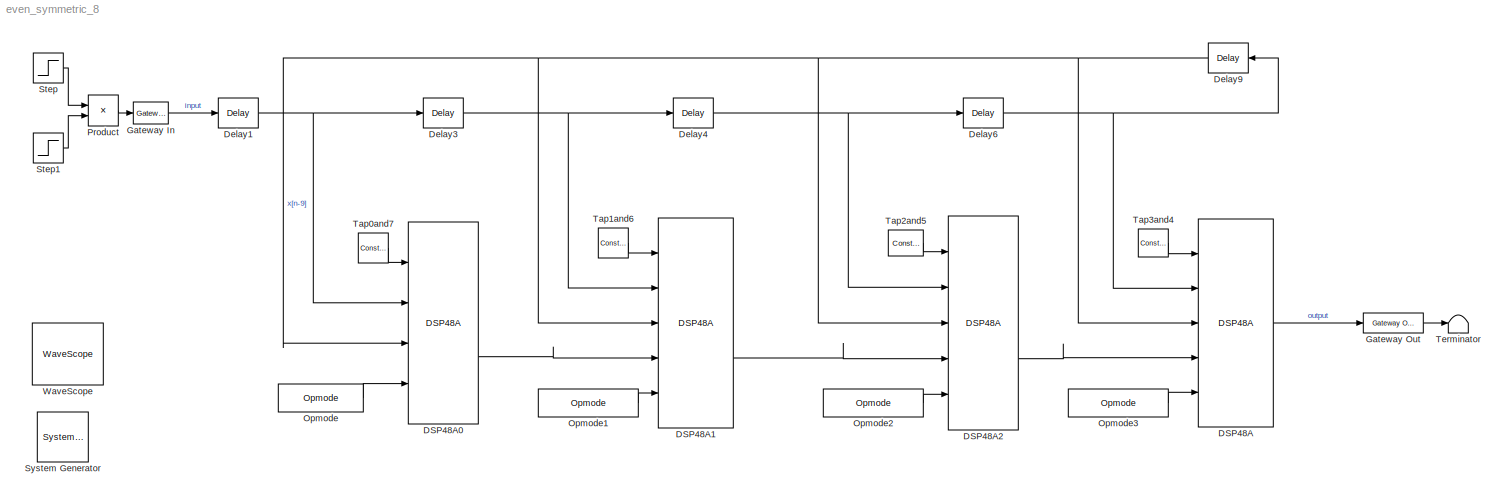
MODEL even_symmetric_8
KIND model
BLOCK [Reference]  System Generator  REF=xbsIndex_r4/ System Generator
  AttributesFormatString = System\\nGenerator
  FunctionWithSeparateData = off
  Ports = []
  RTWMemSecDataConstants = Inherit from model
  RTWMemSecDataInternal = Inherit from model
  RTWMemSecDataParameters = Inherit from model
  RTWMemSecFuncExecute = Inherit from model
  RTWMemSecFuncInitTerm = Inherit from model
  ShowPortLabels = FromPortIcon
  SourceBlock = xbsIndex_r4/ System Generator
  SourceType = Xilinx System Generator Block
  SystemSampleTime = -1
  Tag = genX
  UserData = DataTag0
  UserDataPersistent = on
  block_type = sysgen
  block_version = 9.2.01
  core_generation = According to Block Masks
  dbl_ovrd = According to Block Masks
  deprecated_control = off
  directory = ./even_symmetric_8
  eval_field = 0
  has_advanced_control = 0
  incr_netlist = off
  infoedit = System Generator
  package = cs484
  part = xc3sd1800a
  run_coregen = off
  sg_icon_stat = 51,50,-1,-1,red,beige,0,07734
  sg_mask_display = fprintf('','COMMENT: begin icon graphics');\npatch([0 51 51 0 ],[0 0 50 50 ],[0.93 0.92 0.86]);\npatch([12 4 16 4 12 25 29 33 47 36 25 17 29 17 25 36 47 33 29 25 12 ],[5 13 25 37 45 45 41 45 45 34 45 37 25 13 5 16 5 5 9 5 5 ],[0.6 0.2 0.25]);\nplot([0 0 51 51 0 ],[0 50 50 0 0 ]);\nfprintf('','COMMENT: end icon graphics');\nfprintf('','COMMENT: begin icon text');\nfprintf('','COMMENT: end icon text...<+5ch>
  sggui_pos = -1,-1,-1,-1
  simulink_period = 1
  speed = -5
  synthesis_tool = XST
  sysclk_period = 10
  testbench = off
  trim_vbits = Everywhere in SubSystem
  xilinxfamily = spartan3adsp
BLOCK [Reference] DSP48A  REF=xbsIndex_r4/DSP48A
  Ports = [5, 1]
  SourceBlock = xbsIndex_r4/DSP48A
  SourceType = Xilinx DSP48A Block
  block_type = dsp48a
  block_version = 9.2.01
  carryin_type = Direct from carry in port
  dbl_ovrd = off
  device = 3
  en_a = off
  en_all = off
  en_b = off
  en_c = off
  en_carry_in = off
  en_d = off
  en_mult = off
  en_opmode = off
  en_p = off
  has_advanced_control = 0
  pipeline_c = on
  pipeline_carryin = on
  pipeline_d = on
  pipeline_mult = on
  pipeline_opmode = on
  pipeline_p = on
  rst_a = off
  rst_all = off
  rst_b = off
  rst_c = off
  rst_carry_in = off
  rst_d = off
  rst_mult = off
  rst_opmode = off
  rst_p = off
  sg_icon_stat = 75,208,5,1,white,blue,0,9702439f
  sg_mask_display = fprintf('','COMMENT: begin icon graphics');\npatch([0 75 75 0 ],[0 0 208 208 ],[0.77 0.82 0.91]);\npatch([17 5 23 5 17 37 42 47 68 51 35 23 40 23 35 51 68 47 42 37 17 ],[75 87 105 123 135 135 130 135 135 118 134 122 105 88 76 92 75 75 80 75 75 ],[0.98 0.96 0.92]);\nplot([0 0 75 75 0 ],[0 208 208 0 0 ]);\nfprintf('','COMMENT: end icon graphics');\nfprintf('','COMMENT: begin icon text');\ncolor('bla...<+292ch>
  sggui_pos = 20,20,442,483
  use_a0reg = on
  use_a1reg = off
  use_b0reg = on
  use_b1reg = on
  use_bcout = off
  use_carryin = off
  use_carryout = off
  use_creg = off
  use_d = on
  use_op = on
  use_pcin = on
  use_pcout = off
  use_synth_model = off
  xl_area = [0,0,0,0,0,0,0]
  xl_use_area = off
BLOCK [Reference] DSP48A0  REF=xbsIndex_r4/DSP48A
  Ports = [4, 2]
  SourceBlock = xbsIndex_r4/DSP48A
  SourceType = Xilinx DSP48A Block
  block_type = dsp48a
  block_version = 9.2.01
  carryin_type = Direct from carry in port
  dbl_ovrd = off
  device = 3
  en_a = off
  en_all = off
  en_b = off
  en_c = off
  en_carry_in = off
  en_d = off
  en_mult = off
  en_opmode = off
  en_p = off
  has_advanced_control = 0
  pipeline_c = off
  pipeline_carryin = on
  pipeline_d = on
  pipeline_mult = on
  pipeline_opmode = on
  pipeline_p = on
  rst_a = off
  rst_all = off
  rst_b = off
  rst_c = off
  rst_carry_in = off
  rst_d = off
  rst_mult = off
  rst_opmode = off
  rst_p = off
  sg_icon_stat = 70,202,4,2,white,blue,0,78921e76
  sg_mask_display = fprintf('','COMMENT: begin icon graphics');\npatch([0 70 70 0 ],[0 0 202 202 ],[0.77 0.82 0.91]);\npatch([17 5 21 5 17 35 40 45 65 49 34 23 39 23 34 49 65 45 40 35 17 ],[74 86 102 118 130 130 125 130 130 114 129 118 102 86 75 90 74 74 79 74 74 ],[0.98 0.96 0.92]);\nplot([0 0 70 70 0 ],[0 202 202 0 0 ]);\nfprintf('','COMMENT: end icon graphics');\nfprintf('','COMMENT: begin icon text');\ncolor('bla...<+294ch>
  sggui_pos = 20,20,442,483
  use_a0reg = on
  use_a1reg = off
  use_b0reg = on
  use_b1reg = on
  use_bcout = off
  use_carryin = off
  use_carryout = off
  use_creg = off
  use_d = on
  use_op = on
  use_pcin = off
  use_pcout = on
  use_synth_model = off
  xl_area = [0,0,0,0,0,0,0]
  xl_use_area = off
BLOCK [Reference] DSP48A1  REF=xbsIndex_r4/DSP48A
  Ports = [5, 2]
  SourceBlock = xbsIndex_r4/DSP48A
  SourceType = Xilinx DSP48A Block
  block_type = dsp48a
  block_version = 9.2.01
  carryin_type = Direct from carry in port
  dbl_ovrd = off
  device = 3
  en_a = off
  en_all = off
  en_b = off
  en_c = off
  en_carry_in = off
  en_d = off
  en_mult = off
  en_opmode = off
  en_p = off
  has_advanced_control = 0
  pipeline_c = on
  pipeline_carryin = on
  pipeline_d = on
  pipeline_mult = on
  pipeline_opmode = on
  pipeline_p = on
  rst_a = off
  rst_all = off
  rst_b = off
  rst_c = off
  rst_carry_in = off
  rst_d = off
  rst_mult = off
  rst_opmode = off
  rst_p = off
  sg_icon_stat = 75,210,5,2,white,blue,0,05785a86
  sg_mask_display = fprintf('','COMMENT: begin icon graphics');\npatch([0 75 75 0 ],[0 0 210 210 ],[0.77 0.82 0.91]);\npatch([17 5 23 5 17 37 42 47 68 51 35 23 40 23 35 51 68 47 42 37 17 ],[76 88 106 124 136 136 131 136 136 119 135 123 106 89 77 93 76 76 81 76 76 ],[0.98 0.96 0.92]);\nplot([0 0 75 75 0 ],[0 210 210 0 0 ]);\nfprintf('','COMMENT: end icon graphics');\nfprintf('','COMMENT: begin icon text');\ncolor('bla...<+340ch>
  sggui_pos = 20,20,442,483
  use_a0reg = on
  use_a1reg = off
  use_b0reg = on
  use_b1reg = on
  use_bcout = off
  use_carryin = off
  use_carryout = off
  use_creg = off
  use_d = on
  use_op = on
  use_pcin = on
  use_pcout = on
  use_synth_model = off
  xl_area = [0,0,0,0,0,0,0]
  xl_use_area = off
BLOCK [Reference] DSP48A2  REF=xbsIndex_r4/DSP48A
  Ports = [5, 2]
  SourceBlock = xbsIndex_r4/DSP48A
  SourceType = Xilinx DSP48A Block
  block_type = dsp48a
  block_version = 9.2.01
  carryin_type = Direct from carry in port
  dbl_ovrd = off
  device = 3
  en_a = off
  en_all = off
  en_b = off
  en_c = off
  en_carry_in = off
  en_d = off
  en_mult = off
  en_opmode = off
  en_p = off
  has_advanced_control = 0
  pipeline_c = on
  pipeline_carryin = on
  pipeline_d = on
  pipeline_mult = on
  pipeline_opmode = on
  pipeline_p = on
  rst_a = off
  rst_all = off
  rst_b = off
  rst_c = off
  rst_carry_in = off
  rst_d = off
  rst_mult = off
  rst_opmode = off
  rst_p = off
  sg_icon_stat = 70,214,5,2,white,blue,0,05785a86
  sg_mask_display = fprintf('','COMMENT: begin icon graphics');\npatch([0 70 70 0 ],[0 0 214 214 ],[0.77 0.82 0.91]);\npatch([17 5 21 5 17 35 40 45 65 49 34 23 39 23 34 49 65 45 40 35 17 ],[80 92 108 124 136 136 131 136 136 120 135 124 108 92 81 96 80 80 85 80 80 ],[0.98 0.96 0.92]);\nplot([0 0 70 70 0 ],[0 214 214 0 0 ]);\nfprintf('','COMMENT: end icon graphics');\nfprintf('','COMMENT: begin icon text');\ncolor('bla...<+340ch>
  sggui_pos = 20,20,442,483
  use_a0reg = on
  use_a1reg = off
  use_b0reg = on
  use_b1reg = on
  use_bcout = off
  use_carryin = off
  use_carryout = off
  use_creg = off
  use_d = on
  use_op = on
  use_pcin = on
  use_pcout = on
  use_synth_model = off
  xl_area = [0,0,0,0,0,0,0]
  xl_use_area = off
BLOCK [Reference] Delay1  REF=xbsIndex_r4/Delay
  Ports = [1, 1]
  SourceBlock = xbsIndex_r4/Delay
  SourceType = Xilinx Delay Block
  block_type = delay
  block_version = 9.2.01
  dbl_ovrd = off
  en = off
  has_advanced_control = 0
  infoedit = Hardware notes: A delay line is a chain, each link of which is an SRL16 followed by a flip-flop.
  latency = 2
  reg_retiming = off
  sg_icon_stat = 40,30,1,1,white,blue,0,0a7a6cf1
  sg_mask_display = fprintf('','COMMENT: begin icon graphics');\npatch([0 40 40 0 ],[0 0 30 30 ],[0.77 0.82 0.91]);\npatch([12 7 14 7 12 20 22 24 32 25 19 14 20 14 19 25 32 24 22 20 12 ],[3 8 15 22 27 27 25 27 27 20 26 21 15 9 4 10 3 3 5 3 3 ],[0.98 0.96 0.92]);\nplot([0 0 40 40 0 ],[0 30 30 0 0 ]);\nfprintf('','COMMENT: end icon graphics');\nfprintf('','COMMENT: begin icon text');\ncolor('black');disp('z^{-2}','texm...<+52ch>  <repeated x4 — deduplicated; at blocks: Delay1, Delay3, Delay4, Delay6>
  sggui_pos = 20,20,348,255
  xl_area = [0,0,0,0,0,0,0]
  xl_use_area = off
BLOCK [Reference] Delay3  REF=xbsIndex_r4/Delay
  Ports = [1, 1]
  SourceBlock = xbsIndex_r4/Delay
  SourceType = Xilinx Delay Block
  block_type = delay
  block_version = 9.2.01
  dbl_ovrd = off
  en = off
  has_advanced_control = 0
  infoedit = Hardware notes: A delay line is a chain, each link of which is an SRL16 followed by a flip-flop.
  latency = 2
  reg_retiming = off
  sg_icon_stat = 40,30,1,1,white,blue,0,0a7a6cf1
  sggui_pos = 20,20,348,255
  xl_area = [0,0,0,0,0,0,0]
  xl_use_area = off
BLOCK [Reference] Delay4  REF=xbsIndex_r4/Delay
  Ports = [1, 1]
  SourceBlock = xbsIndex_r4/Delay
  SourceType = Xilinx Delay Block
  block_type = delay
  block_version = 9.2.01
  dbl_ovrd = off
  en = off
  has_advanced_control = 0
  infoedit = Hardware notes: A delay line is a chain, each link of which is an SRL16 followed by a flip-flop.
  latency = 2
  reg_retiming = off
  sg_icon_stat = 40,30,1,1,white,blue,0,0a7a6cf1
  sggui_pos = 20,20,348,255
  xl_area = [0,0,0,0,0,0,0]
  xl_use_area = off
BLOCK [Reference] Delay6  REF=xbsIndex_r4/Delay
  Ports = [1, 1]
  SourceBlock = xbsIndex_r4/Delay
  SourceType = Xilinx Delay Block
  block_type = delay
  block_version = 9.2.01
  dbl_ovrd = off
  en = off
  has_advanced_control = 0
  infoedit = Hardware notes: A delay line is a chain, each link of which is an SRL16 followed by a flip-flop.
  latency = 2
  reg_retiming = off
  sg_icon_stat = 40,30,1,1,white,blue,0,0a7a6cf1
  sggui_pos = 20,20,348,255
  xl_area = [0,0,0,0,0,0,0]
  xl_use_area = off
BLOCK [Reference] Delay9  REF=xbsIndex_r4/Delay
  Ports = [1, 1]
  SourceBlock = xbsIndex_r4/Delay
  SourceType = Xilinx Delay Block
  block_type = delay
  block_version = 9.2.01
  dbl_ovrd = off
  en = off
  has_advanced_control = 0
  infoedit = Hardware notes: A delay line is a chain, each link of which is an SRL16 followed by a flip-flop.
  latency = 1
  reg_retiming = off
  sg_icon_stat = 40,30,1,1,white,blue,0,fc531c0e
  sg_mask_display = fprintf('','COMMENT: begin icon graphics');\npatch([0 40 40 0 ],[0 0 30 30 ],[0.77 0.82 0.91]);\npatch([12 7 14 7 12 20 22 24 32 25 19 14 20 14 19 25 32 24 22 20 12 ],[3 8 15 22 27 27 25 27 27 20 26 21 15 9 4 10 3 3 5 3 3 ],[0.98 0.96 0.92]);\nplot([0 0 40 40 0 ],[0 30 30 0 0 ]);\nfprintf('','COMMENT: end icon graphics');\nfprintf('','COMMENT: begin icon text');\ncolor('black');disp('z^{-1}','texm...<+52ch>
  sggui_pos = 20,20,348,255
  xl_area = [0,0,0,0,0,0,0]
  xl_use_area = off
BLOCK [Reference] Gateway In  REF=xbsIndex_r4/Gateway In
  LOCs = {}
  Ports = [1, 1]
  SourceBlock = xbsIndex_r4/Gateway In
  SourceType = Xilinx Gateway In Block
  arith_type = Signed  (2's comp)
  bin_pt = 0
  block_type = gatewayin
  block_version = 9.2.01
  dbl_ovrd = off
  has_advanced_control = 0
  infoedit = Gateway in block.  Converts inputs of type Simulink integer, double and fixed point to  Xilinx fixed point type.<P><P>Hardware notes:  In hardware these blocks become top level input ports.
  locs_specified = off
  n_bits = 18
  overflow = Saturate
  period = 1
  quantization = Round  (unbiased: +/- Inf)
  sg_icon_stat = 35,22,1,1,white,yellow,0,4bb76ffd
  sg_mask_display = fprintf('','COMMENT: begin icon graphics');\npatch([0 35 35 0 ],[0 0 22 22 ],[0.95 0.93 0.65]);\npatch([12 8 13 8 12 18 20 22 28 23 18 15 21 15 18 23 28 22 20 18 12 ],[2 6 11 16 20 20 18 20 20 15 20 17 11 5 2 7 2 2 4 2 2 ],[0.98 0.96 0.92]);\nplot([0 0 35 35 0 ],[0 22 22 0 0 ]);\nfprintf('','COMMENT: end icon graphics');\nfprintf('','COMMENT: begin icon text');\ncolor('black');port_label('input',1...<+129ch>
  sggui_pos = 20,20,348,406
  timing_constraint = None
  xl_area = [0,0,0,0,0,0,0]
  xl_use_area = off
BLOCK [Reference] Gateway Out  REF=xbsIndex_r4/Gateway Out
  LOCs = {}
  Ports = [1, 1]
  SourceBlock = xbsIndex_r4/Gateway Out
  SourceType = Xilinx Gateway Out Block
  block_type = gatewayout
  block_version = 9.2.01
  has_advanced_control = 0
  hdl_port = on
  infoedit = Gateway out block.  Converts Xilinx fixed point inputs into ouputs of type Simulink integer, double, or fixed point.<P><P>Hardware notes:  In hardware these blocks become top level output ports or are discarded, depending on how they are configured.
  locs_specified = off
  sg_icon_stat = 60,20,1,1,white,yellow,0,f0cec300
  sg_mask_display = fprintf('','COMMENT: begin icon graphics');\npatch([0 60 60 0 ],[0 0 20 20 ],[0.95 0.93 0.65]);\npatch([24 21 26 21 24 29 30 31 37 33 29 26 31 26 29 33 37 31 30 29 24 ],[2 5 10 15 18 18 17 18 18 14 18 15 10 5 2 6 2 2 3 2 2 ],[0.98 0.96 0.92]);\nplot([0 0 60 60 0 ],[0 20 20 0 0 ]);\nfprintf('','COMMENT: end icon graphics');\nfprintf('','COMMENT: begin icon text');\ncolor('black');port_label('input'...<+132ch>
  sggui_pos = -1,-1,-1,-1
  timing_constraint = None
  xl_area = [0,0,0,0,0,0,0]
  xl_use_area = off
BLOCK [Reference] Opmode  REF=xbsIndex_r4/Opmode
  Ports = [0, 1]
  SourceBlock = xbsIndex_r4/Opmode
  SourceType = Xilinx Instruction Block Block
  block_type = opmode
  block_version = 9.2.01
  carry = 0
  dbl_ovrd = off
  device = DSP48A
  equ = P=+(A*(D+B))
  has_advanced_control = 0
  logicinstr = X + Z
  operand = +
  operation = Custom
  sg_icon_stat = 85,28,0,1,white,blue,0,1dcbd6aa
  sg_list_contents = {'table'=>{'carry'=>'popup(0|1|CIN)','operation'=>'popup(C + A*B|PCIN + A*B|P + A*B|A * B|C + D:A:B|C - D:A:B|C|Custom)','userSelections'=>{'carry'=>'0','operation'=>'Custom','z_mux'=>'0'},'z_mux'=>'popup(0|PCIN|P|C)'}}
  sg_mask_display = fprintf('','COMMENT: begin icon graphics');\npatch([0 85 85 0 ],[0 0 28 28 ],[0.77 0.82 0.91]);\npatch([35 30 37 30 35 42 44 46 54 48 42 38 46 38 42 48 54 46 44 42 35 ],[3 8 15 22 27 27 25 27 27 21 27 23 15 7 3 9 3 3 5 3 3 ],[0.98 0.96 0.92]);\nplot([0 0 85 85 0 ],[0 28 28 0 0 ]);\nfprintf('','COMMENT: end icon graphics');\nfprintf('','COMMENT: begin icon text');\ncolor('black');port_label('output...<+61ch>
  sggui_pos = 20,20,336,450
  x_mux = A*(D+B)
  xy_mux = P
  z_mux = 0
BLOCK [Reference] Opmode1  REF=xbsIndex_r4/Opmode
  Ports = [0, 1]
  SourceBlock = xbsIndex_r4/Opmode
  SourceType = Xilinx Instruction Block Block
  block_type = opmode
  block_version = 9.2.01
  carry = 0
  dbl_ovrd = off
  device = DSP48A
  equ = P=PCIN+(A*(D+B))
  has_advanced_control = 0
  logicinstr = X + Z
  operand = +
  operation = Custom
  sg_icon_stat = 100,28,0,1,white,blue,0,9760c779
  sg_list_contents = {'table'=>{'carry'=>'popup(0|1|CIN)','operation'=>'popup(C + A*B|PCIN + A*B|P + A*B|A * B|C + D:A:B|C - D:A:B|C|Custom)','userSelections'=>{'carry'=>'0','operation'=>'Custom','z_mux'=>'PCIN'},'z_mux'=>'popup(0|PCIN|P|C)'}}  <repeated x3 — deduplicated; at blocks: Opmode1, Opmode2, Opmode3>
  sg_mask_display = fprintf('','COMMENT: begin icon graphics');\npatch([0 100 100 0 ],[0 0 28 28 ],[0.77 0.82 0.91]);\npatch([43 38 45 38 43 50 52 54 62 56 50 46 54 46 50 56 62 54 52 50 43 ],[3 8 15 22 27 27 25 27 27 21 27 23 15 7 3 9 3 3 5 3 3 ],[0.98 0.96 0.92]);\nplot([0 0 100 100 0 ],[0 28 28 0 0 ]);\nfprintf('','COMMENT: end icon graphics');\nfprintf('','COMMENT: begin icon text');\ncolor('black');port_label('ou...<+69ch>  <repeated x3 — deduplicated; at blocks: Opmode1, Opmode2, Opmode3>
  sggui_pos = 20,20,336,450
  x_mux = A*(D+B)
  xy_mux = P
  z_mux = PCIN
BLOCK [Reference] Opmode2  REF=xbsIndex_r4/Opmode
  Ports = [0, 1]
  SourceBlock = xbsIndex_r4/Opmode
  SourceType = Xilinx Instruction Block Block
  block_type = opmode
  block_version = 9.2.01
  carry = 0
  dbl_ovrd = off
  device = DSP48A
  equ = P=PCIN+(A*(D+B))
  has_advanced_control = 0
  logicinstr = X + Z
  operand = +
  operation = Custom
  sg_icon_stat = 100,28,0,1,white,blue,0,9760c779
  sggui_pos = 20,20,336,450
  x_mux = A*(D+B)
  xy_mux = P
  z_mux = PCIN
BLOCK [Reference] Opmode3  REF=xbsIndex_r4/Opmode
  Ports = [0, 1]
  SourceBlock = xbsIndex_r4/Opmode
  SourceType = Xilinx Instruction Block Block
  block_type = opmode
  block_version = 9.2.01
  carry = 0
  dbl_ovrd = off
  device = DSP48A
  equ = P=PCIN+(A*(D+B))
  has_advanced_control = 0
  logicinstr = X + Z
  operand = +
  operation = Custom
  sg_icon_stat = 100,28,0,1,white,blue,0,9760c779
  sggui_pos = 20,20,336,450
  x_mux = A*(D+B)
  xy_mux = P
  z_mux = PCIN
BLOCK [Product] Product
  CollapseMode = All dimensions
  InputSameDT = off
  OutDataTypeMode = Inherit via internal rule
  Ports = [2, 1]
  SaturateOnIntegerOverflow = off
BLOCK [Step] Step
  SampleTime = 1
  Time = 3
BLOCK [Step] Step1
  After = 0
  Before = 1
  SampleTime = 1
  Time = 4
BLOCK [Reference] Tap0and7  REF=xbsIndex_r4/Constant
  Ports = [0, 1]
  SourceBlock = xbsIndex_r4/Constant
  SourceType = Xilinx Constant Block Block
  arith_type = Signed (2's comp)
  bin_pt = 0
  block_type = constant
  block_version = 9.2.01
  carry = CIN
  const = 16
  dbl_ovrd = off
  dsp48_infoedit = The use of this block for DSP48 instructions is deprecated.  Please use the Opmode block.
  equ = P=C
  explicit_period = off
  has_advanced_control = 0
  inp1 = P
  inp2 = PCIN>>17
  n_bits = 18
  opr = +
  opselect = C
  period = 1
  sg_icon_stat = 30,30,0,1,white,blue,0,4114a875
  sg_mask_display = fprintf('','COMMENT: begin icon graphics');\npatch([0 30 30 0 ],[0 0 30 30 ],[0.77 0.82 0.91]);\npatch([7 2 9 2 7 15 17 19 27 20 14 9 15 9 14 20 27 19 17 15 7 ],[3 8 15 22 27 27 25 27 27 20 26 21 15 9 4 10 3 3 5 3 3 ],[0.98 0.96 0.92]);\nplot([0 0 30 30 0 ],[0 30 30 0 0 ]);\nfprintf('','COMMENT: end icon graphics');\nfprintf('','COMMENT: begin icon text');\ncolor('black');port_label('output',1,'16...<+44ch>
  sggui_pos = 20,20,400,346
BLOCK [Reference] Tap1and6  REF=xbsIndex_r4/Constant
  Ports = [0, 1]
  SourceBlock = xbsIndex_r4/Constant
  SourceType = Xilinx Constant Block Block
  arith_type = Signed (2's comp)
  bin_pt = 0
  block_type = constant
  block_version = 9.2.01
  carry = CIN
  const = -56
  dbl_ovrd = off
  dsp48_infoedit = The use of this block for DSP48 instructions is deprecated.  Please use the Opmode block.
  equ = P=C
  explicit_period = off
  has_advanced_control = 0
  inp1 = P
  inp2 = PCIN>>17
  n_bits = 18
  opr = +
  opselect = C
  period = 1
  sg_icon_stat = 30,30,0,1,white,blue,0,b67cf53a
  sg_mask_display = fprintf('','COMMENT: begin icon graphics');\npatch([0 30 30 0 ],[0 0 30 30 ],[0.77 0.82 0.91]);\npatch([7 2 9 2 7 15 17 19 27 20 14 9 15 9 14 20 27 19 17 15 7 ],[3 8 15 22 27 27 25 27 27 20 26 21 15 9 4 10 3 3 5 3 3 ],[0.98 0.96 0.92]);\nplot([0 0 30 30 0 ],[0 30 30 0 0 ]);\nfprintf('','COMMENT: end icon graphics');\nfprintf('','COMMENT: begin icon text');\ncolor('black');port_label('output',1,'-5...<+45ch>
  sggui_pos = 20,20,400,346
BLOCK [Reference] Tap2and5  REF=xbsIndex_r4/Constant
  Ports = [0, 1]
  SourceBlock = xbsIndex_r4/Constant
  SourceType = Xilinx Constant Block Block
  arith_type = Signed (2's comp)
  bin_pt = 0
  block_type = constant
  block_version = 9.2.01
  carry = CIN
  const = -99
  dbl_ovrd = off
  dsp48_infoedit = The use of this block for DSP48 instructions is deprecated.  Please use the Opmode block.
  equ = P=C
  explicit_period = off
  has_advanced_control = 0
  inp1 = P
  inp2 = PCIN>>17
  n_bits = 18
  opr = +
  opselect = C
  period = 1
  sg_icon_stat = 35,26,0,1,white,blue,0,787051cc
  sg_mask_display = fprintf('','COMMENT: begin icon graphics');\npatch([0 35 35 0 ],[0 0 26 26 ],[0.77 0.82 0.91]);\npatch([10 6 12 6 10 17 19 21 28 22 16 12 18 12 16 22 28 21 19 17 10 ],[3 7 13 19 23 23 21 23 23 17 23 19 13 7 3 9 3 3 5 3 3 ],[0.98 0.96 0.92]);\nplot([0 0 35 35 0 ],[0 26 26 0 0 ]);\nfprintf('','COMMENT: end icon graphics');\nfprintf('','COMMENT: begin icon text');\ncolor('black');port_label('output',...<+50ch>
  sggui_pos = 20,20,400,346
BLOCK [Reference] Tap3and4  REF=xbsIndex_r4/Constant
  Ports = [0, 1]
  SourceBlock = xbsIndex_r4/Constant
  SourceType = Xilinx Constant Block Block
  arith_type = Signed (2's comp)
  bin_pt = 0
  block_type = constant
  block_version = 9.2.01
  carry = CIN
  const = 111
  dbl_ovrd = off
  dsp48_infoedit = The use of this block for DSP48 instructions is deprecated.  Please use the Opmode block.
  equ = P=C
  explicit_period = off
  has_advanced_control = 0
  inp1 = P
  inp2 = PCIN>>17
  n_bits = 18
  opr = +
  opselect = C
  period = 1
  sg_icon_stat = 30,28,1,1,white,blue,0,e433015b
  sg_mask_display = fprintf('','COMMENT: begin icon graphics');\npatch([0 30 30 0 ],[0 0 28 28 ],[0.77 0.82 0.91]);\npatch([8 3 10 3 8 15 17 19 27 21 15 11 19 11 15 21 27 19 17 15 8 ],[3 8 15 22 27 27 25 27 27 21 27 23 15 7 3 9 3 3 5 3 3 ],[0.98 0.96 0.92]);\nplot([0 0 30 30 0 ],[0 28 28 0 0 ]);\nfprintf('','COMMENT: end icon graphics');\nfprintf('','COMMENT: begin icon text');\ncolor('black');port_label('output',1,'...<+47ch>
  sggui_pos = 20,20,400,346
BLOCK [Terminator] Terminator
BLOCK [Reference] WaveScope  REF=xbsIndex_r4/WaveScope
  Ports = []
  SourceBlock = xbsIndex_r4/WaveScope
  SourceType = WaveScope Block
  UserData = DataTag1
  UserDataPersistent = on
  block_type = wavescope
  block_version = 9.2.01
  has_advanced_control = 0
  infoedit = WaveScope
  sg_icon_stat = 0,0,-1,-1,white,blue,0,07734
  sggui_pos = -1,-1,-1,-1
LINE DSP48A0:2 -> DSP48A1:4
LINE DSP48A1:2 -> DSP48A2:4
LINE DSP48A2:2 -> DSP48A:4
LINE DSP48A:1 -> Gateway Out:1
NET Delay1:1 -> DSP48A0:2, Delay3:1
NET Delay3:1 -> DSP48A1:2, Delay4:1
NET Delay4:1 -> DSP48A2:2, Delay6:1
NET Delay6:1 -> DSP48A:2, Delay9:1
NET Delay9:1 -> DSP48A0:3, DSP48A1:3, DSP48A2:3, DSP48A:3
LINE Gateway In:1 -> Delay1:1
LINE Gateway Out:1 -> Terminator:1
LINE Opmode1:1 -> DSP48A1:5
LINE Opmode2:1 -> DSP48A2:5
LINE Opmode3:1 -> DSP48A:5
LINE Opmode:1 -> DSP48A0:4
LINE Product:1 -> Gateway In:1
LINE Step1:1 -> Product:2
LINE Step:1 -> Product:1
LINE Tap0and7:1 -> DSP48A0:1
LINE Tap1and6:1 -> DSP48A1:1
LINE Tap2and5:1 -> DSP48A2:1
LINE Tap3and4:1 -> DSP48A:1
note: NET lines group one-source signal fan-out (src -> all destinations, sorted); 1:1 wires keep LINE
